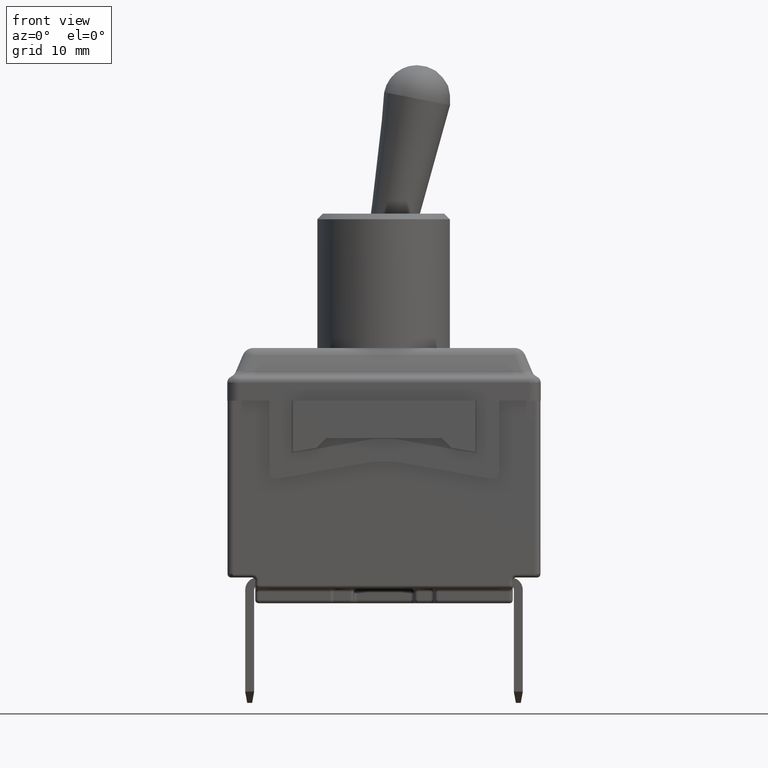
[diagram: clean part render]
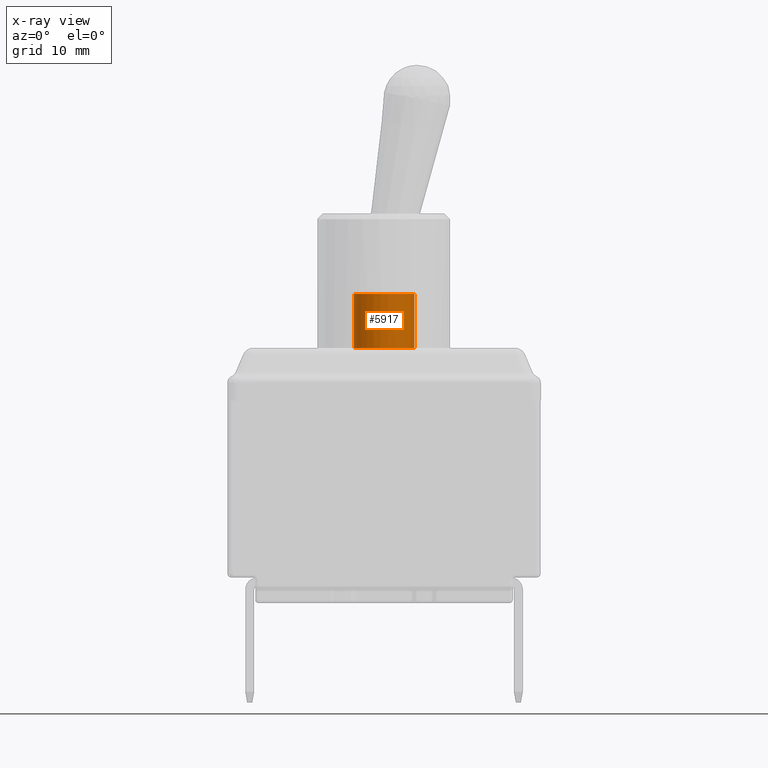
[diagram: x-ray — body ghosted, one internal face saturated and labeled with its STEP entity id]
A machine part, front view, then the same camera in x-ray: the body is ghosted and one INTERNAL B-rep face — a face not visible from any outside direction — is saturated and labeled: STEP entity #5917.
In plain terms, the highlighted cylindrical surface (bore or boss wall) has radius 2.7 mm, axis along (0, 0, 1).
Its self-contained STEP definition (entity closure, byte-faithful):
#366=LINE('',#8773,#875);
#875=VECTOR('',#6973,0.27);
#1384=CYLINDRICAL_SURFACE('',#6319,0.27);
#1506=FACE_OUTER_BOUND('',#1889,.T.);
#1889=EDGE_LOOP('',(#4057,#4058,#4059,#4060));
#2286=CIRCLE('',#6318,0.27);
#2287=CIRCLE('',#6320,0.27);
#2590=VERTEX_POINT('',#8768);
#2591=VERTEX_POINT('',#8771);
#3141=EDGE_CURVE('',#2590,#2590,#2286,.T.);
#3142=EDGE_CURVE('',#2591,#2591,#2287,.T.);
#3143=EDGE_CURVE('',#2591,#2590,#366,.T.);
#4057=ORIENTED_EDGE('',*,*,#3142,.F.);
#4058=ORIENTED_EDGE('',*,*,#3143,.T.);
#4059=ORIENTED_EDGE('',*,*,#3141,.T.);
#4060=ORIENTED_EDGE('',*,*,#3143,.F.);
#5917=ADVANCED_FACE('',(#1506),#1384,.F.);
#6318=AXIS2_PLACEMENT_3D('',#8769,#6967,#6968);
#6319=AXIS2_PLACEMENT_3D('',#8770,#6969,#6970);
#6320=AXIS2_PLACEMENT_3D('',#8772,#6971,#6972);
#6967=DIRECTION('center_axis',(0.,0.,1.));
#6968=DIRECTION('ref_axis',(-1.,0.,0.));
#6969=DIRECTION('center_axis',(0.,0.,1.));
#6970=DIRECTION('ref_axis',(-1.,0.,0.));
#6971=DIRECTION('center_axis',(-8.0991160700709E-50,1.27731203398621E-32,
1.));
#6972=DIRECTION('ref_axis',(-1.,0.,0.));
#6973=DIRECTION('',(0.,0.,1.));
#8768=CARTESIAN_POINT('',(0.27,3.30654635769785E-17,0.952289425486799));
#8769=CARTESIAN_POINT('Origin',(0.,0.,0.952289425486799));
#8770=CARTESIAN_POINT('Origin',(0.,0.,0.47));
#8771=CARTESIAN_POINT('',(0.27,3.30654635769785E-17,0.47));
#8772=CARTESIAN_POINT('Origin',(0.,0.,0.47));
#8773=CARTESIAN_POINT('',(0.27,3.30654635769785E-17,0.47));